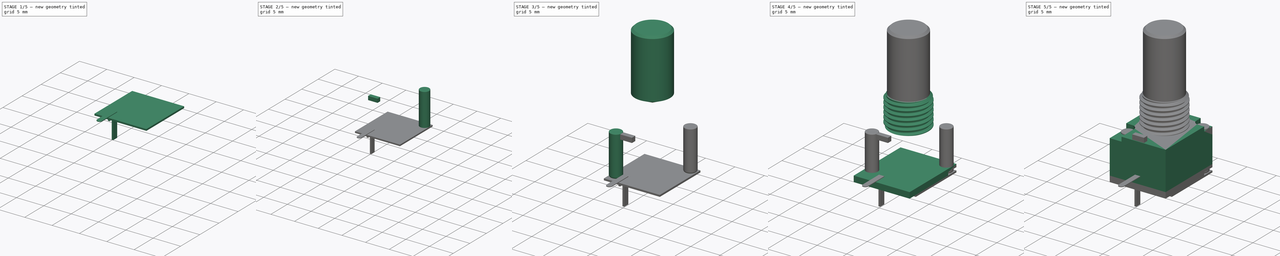
[diagram: build sequence overview — one tinted view per stage of 5, left to right]
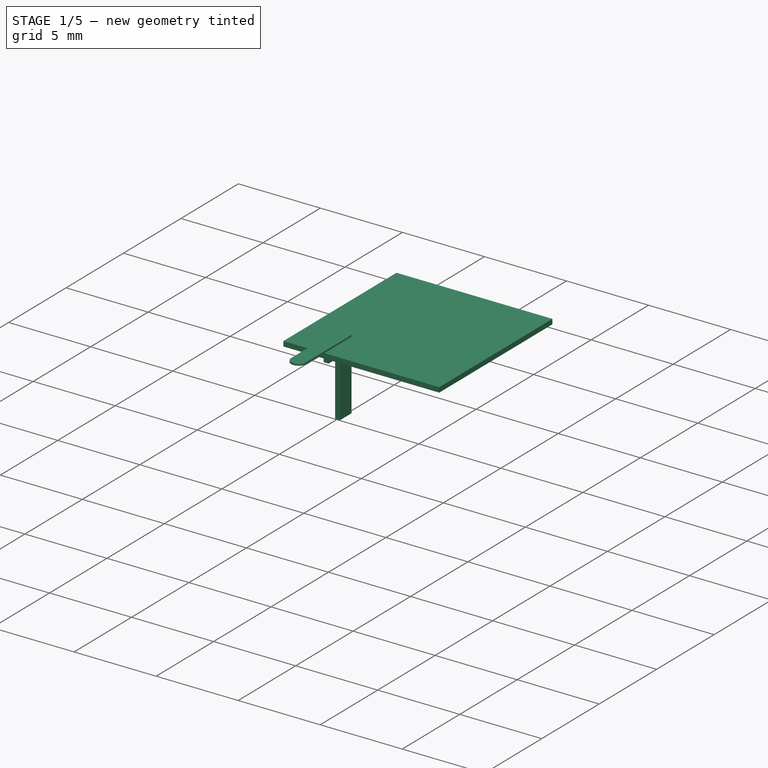
[diagram: stage 1 of 5 — iso view after this stage's code; geometry added in this stage tinted green]
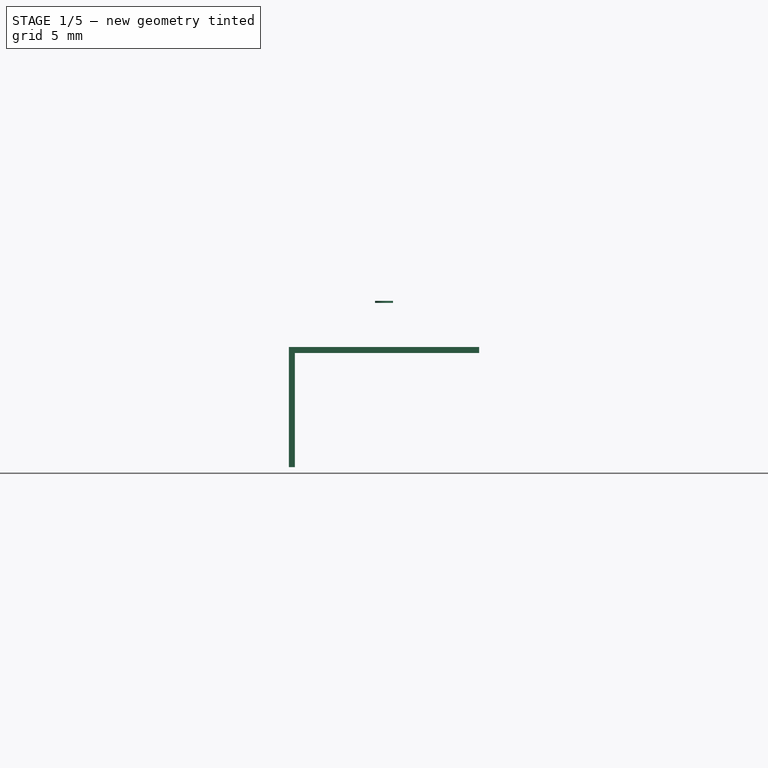
[diagram: stage 1 of 5 — front view after this stage's code; geometry added in this stage tinted green]
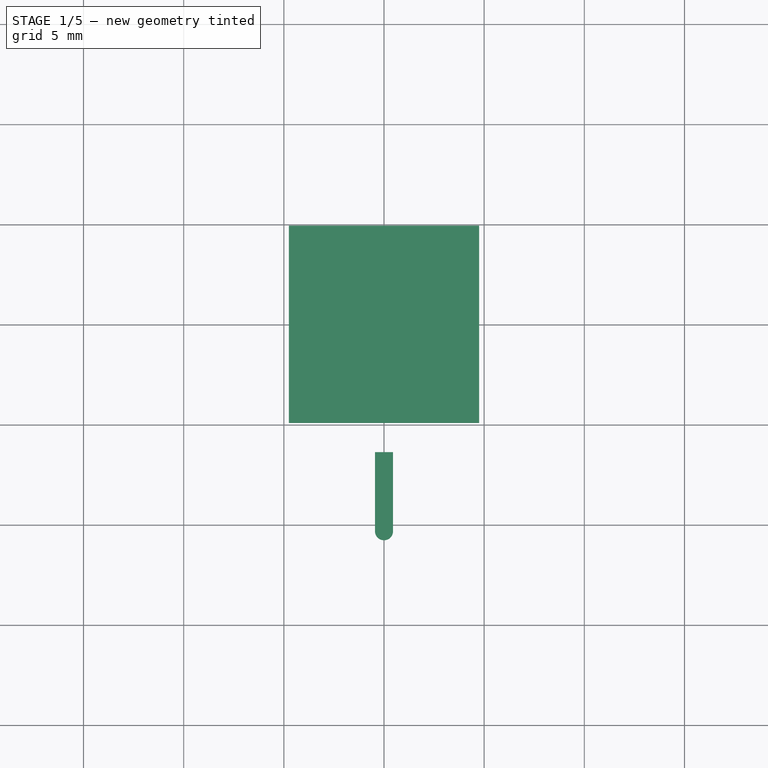
[diagram: stage 1 of 5 — top view after this stage's code; geometry added in this stage tinted green]
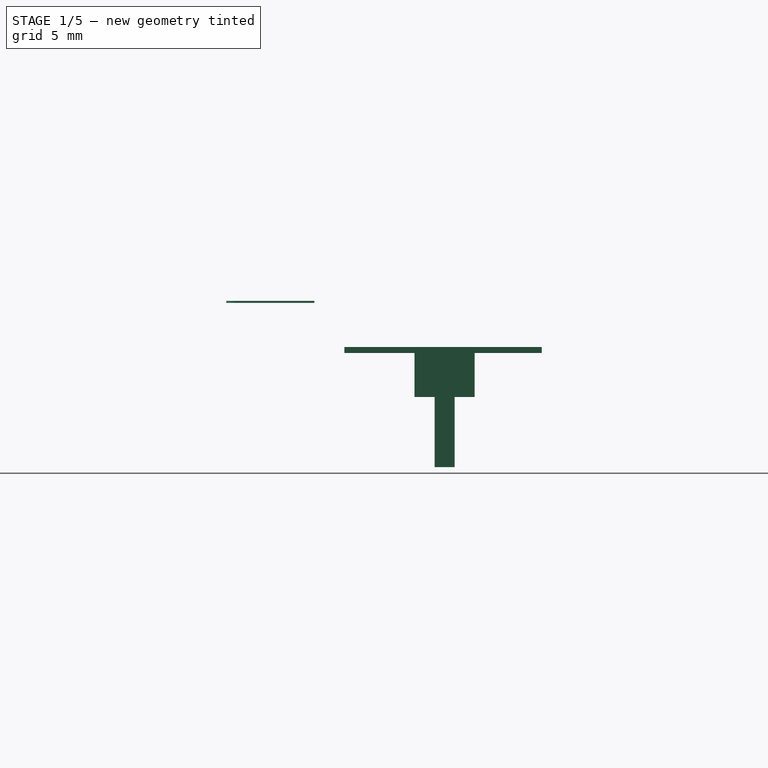
[diagram: stage 1 of 5 — right view after this stage's code; geometry added in this stage tinted green]
FCSTD DOCUMENT  (FreeCAD 0.18R16110 (Git))
Label: RD901F Datums Spreadsheet Labelfup
License: All rights reserved
LicenseURL: http://en.wikipedia.org/wiki/All_rights_reserved
objects: Sketcher::SketchObject×17, PartDesign::Body×12, PartDesign::Pad×10, PartDesign::Pocket×4, PartDesign::Fillet×4, PartDesign::Revolution×2, PartDesign::FeatureBase×2, Spreadsheet::Sheet×1, Part::Helix×1, PartDesign::ShapeBinder×1, PartDesign::SubtractivePipe×1, App::Part×1
note: 71 computed .brp shape members not serialized (recipe doc carries the construction recipe); baked Part::Feature solids carry a one-line shape summary decoded from their .brp

FEATURE [PartDesign::Body] Body008  label="Tab"
  Group = -> [Sketch012,Pad005]
  Origin = -> Origin009
  Tip = -> Pad005
FEATURE [Sketcher::SketchObject] Sketch013
  AttachmentOffset = pos=(0,0,2.25) rot=(0,0,1;0rad)
  MapMode = 5
  Placement = pos=(0,0,2.25) rot=(0,0,1;0rad)
  Support = -> [XY_Plane010]
  expr: AttachmentOffset.Base.z = Data.term_20_zpos
  expr: Constraints[16] = Data.body_y2
  expr: Constraints[15] = Data.term_20_x
  expr: Constraints[14] = Data.term_20_y
  sketch-geometry (7):
    g0: LineSegment StartX=-0.45 StartY=-6.5 StartZ=0 EndX=-0.45 EndY=-10.45 EndZ=0
    g1: LineSegment StartX=0.45 StartY=-6.5 StartZ=0 EndX=0.45 EndY=-10.45 EndZ=0
    g2: ArcOfCircle CenterX=0 CenterY=-10.45 CenterZ=0 NormalX=0 NormalY=0 NormalZ=1 AngleXU=0 Radius=0.45 StartAngle=3.14159 EndAngle=6.28319
    g3: LineSegment StartX=-0.45 StartY=-6.5 StartZ=0 EndX=0.45 EndY=-6.5 EndZ=0
    g4: GeomPoint X=0 Y=-10 Z=0
    g5: LineSegment [constr] StartX=0 StartY=-10 StartZ=0 EndX=0 EndY=-10.45 EndZ=0
    g6: LineSegment [constr] StartX=0 StartY=-10.45 StartZ=0 EndX=0 EndY=-6.5 EndZ=0
  constraints (18):
    c: Vertical(g0)
    c: Vertical(g1)
    c: Coincident(g3,g0)
    c: Coincident(g3,g1)
    c: Horizontal(g3)
    c: Tangent(g2,g1) = 1.5708
    c: Tangent(g2,g0) = -1.5708
    c: PointOnObject(g4,g2)
    c: Coincident(g5,g4)
    c: Coincident(g5,g2)
    c: Vertical(g5)
    c: Coincident(g6,g2)
    c: PointOnObject(g6,g3)
    c: Vertical(g6)
    c: DistanceY(g4,g6) = 3.5
    c: DistanceX(g0,g1) = 0.9
    c: DistanceY(g6,g-1) = 6.5
    c: PointOnObject(g6,g-2)
FEATURE [PartDesign::Pad] Pad006
  Length = 0.1
  Length2 = 100
  Midplane = true
  Profile = -> Sketch013
  Type = 0
  expr: Length = Data.term_20_z
FEATURE [PartDesign::Body] Body010  label="Terminals_Type_20_Clone"
  Group = -> [Clone]
  Origin = -> Origin011
  Placement = pos=(-2.5,0,0) rot=(0,0,1;0rad)
  Tip = -> Clone
FEATURE [PartDesign::FeatureBase] Clone001
  BaseFeature = -> Body009
FEATURE [PartDesign::Body] Body011  label="Terminals_Type_20_Clone2"
  Group = -> [Clone001]
  Origin = -> Origin012
  Placement = pos=(2.5,0,0) rot=(0,0,1;0rad)
  Tip = -> Clone001
FEATURE [Sketcher::SketchObject] Sketch014
  MapMode = 5
  Support = -> [XY_Plane013]
  expr: Constraints[10] = Data.body_y2 - Data.cutout_bl_y2
  expr: Constraints[9] = Data.body_x
  expr: Constraints[7] = Data.body_y1
  sketch-geometry (4):
    g0: LineSegment StartX=4.75 StartY=4.85 StartZ=0 EndX=-4.75 EndY=4.85 EndZ=0
    g1: LineSegment StartX=-4.75 StartY=4.85 StartZ=0 EndX=-4.75 EndY=-5 EndZ=0
    g2: LineSegment StartX=-4.75 StartY=-5 StartZ=0 EndX=4.75 EndY=-5 EndZ=0
    g3: LineSegment StartX=4.75 StartY=-5 StartZ=0 EndX=4.75 EndY=4.85 EndZ=0
  constraints (11):
    c: Coincident(g0,g1)
    c: Coincident(g1,g2)
    c: Coincident(g2,g3)
    c: Coincident(g3,g0)
    c: Horizontal(g2)
    c: Vertical(g1)
    c: Vertical(g3)
    c: DistanceY(g-1,g0) = 4.85
    c: Symmetric(g0,g0,g-2)
    c: DistanceX(g0,g0) = 9.5
    c: DistanceY(g1,g-1) = 5
FEATURE [PartDesign::Pad] Pad007
  Length = 0.3
  Length2 = 100
  Profile = -> Sketch014
  Reversed = true
  Type = 0
  expr: Length = Data.bracket_t
FEATURE [Sketcher::SketchObject] Sketch015
  AttachmentOffset = pos=(0,0,-0.3) rot=(0,0,1;0rad)
  MapMode = 5
  Placement = pos=(0,0,-0.3) rot=(0,0,1;0rad)
  Support = -> [XY_Plane013]
  expr: Constraints[10] = Data.body_x / 2
  expr: Constraints[9] = Data.bracket_t
  expr: AttachmentOffset.Base.z = -Data.bracket_t
  expr: Constraints[8] = Data.mountingpin_top_width
  sketch-geometry (4):
    g0: LineSegment StartX=-4.75 StartY=1.5 StartZ=0 EndX=-4.45 EndY=1.5 EndZ=0
    g1: LineSegment StartX=-4.45 StartY=1.5 StartZ=0 EndX=-4.45 EndY=-1.5 EndZ=0
    g2: LineSegment StartX=-4.45 StartY=-1.5 StartZ=0 EndX=-4.75 EndY=-1.5 EndZ=0
    g3: LineSegment StartX=-4.75 StartY=-1.5 StartZ=0 EndX=-4.75 EndY=1.5 EndZ=0
  constraints (11):
    c: Coincident(g0,g1)
    c: Coincident(g1,g2)
    c: Coincident(g2,g3)
    c: Coincident(g3,g0)
    c: Horizontal(g0)
    c: Horizontal(g2)
    c: Vertical(g1)
    c: Symmetric(g0,g2,g-1)
    c: DistanceY(g3,g3) = 3
    c: DistanceX(g0,g0) = 0.3
    c: DistanceX(g0,g-1) = 4.75
FEATURE [PartDesign::Pad] Pad008
  BaseFeature = -> Pad007
  Length = 2.2
  Length2 = 100
  Profile = -> Sketch015
  Reversed = true
  Type = 0
  expr: Length = Data.standoff_t
FEATURE [Sketcher::SketchObject] Sketch016
  AttachmentOffset = pos=(0,0,-2.5) rot=(0,0,1;0rad)
  MapMode = 5
  Placement = pos=(0,0,-2.5) rot=(0,0,1;0rad)
  Support = -> [XY_Plane013]
  expr: Constraints[10] = Data.body_x / 2
  expr: Constraints[9] = Data.bracket_t
  expr: AttachmentOffset.Base.z = -Data.bracket_t - Data.standoff_t
  expr: Constraints[8] = Data.mountingpin_bottom_width
  sketch-geometry (4):
    g0: LineSegment StartX=-4.75 StartY=0.5 StartZ=0 EndX=-4.45 EndY=0.5 EndZ=0
    g1: LineSegment StartX=-4.45 StartY=0.5 StartZ=0 EndX=-4.45 EndY=-0.5 EndZ=0
    g2: LineSegment StartX=-4.45 StartY=-0.5 StartZ=0 EndX=-4.75 EndY=-0.5 EndZ=0
    g3: LineSegment StartX=-4.75 StartY=-0.5 StartZ=0 EndX=-4.75 EndY=0.5 EndZ=0
  constraints (11):
    c: Coincident(g0,g1)
    c: Coincident(g1,g2)
    c: Coincident(g2,g3)
    c: Coincident(g3,g0)
    c: Horizontal(g0)
    c: Horizontal(g2)
    c: Vertical(g1)
    c: Symmetric(g0,g2,g-1)
    c: DistanceY(g3,g3) = 1
    c: DistanceX(g0,g0) = 0.3
    c: DistanceX(g0,g-1) = 4.75
FEATURE [PartDesign::Pad] Pad009
  BaseFeature = -> Pad008
  Length = 3.5
  Length2 = 100
  Profile = -> Sketch016
  Reversed = true
  Type = 0
  expr: Length = Data.mountingpin_bottom_length
FEATURE [PartDesign::Body] Body012  label="Bracket"
  Group = -> [Sketch014,Pad007,Sketch015,Pad008,Sketch016,Pad009]
  Origin = -> Origin013
  Tip = -> Pad009
FEATURE [App::Part] Part  label="RD901F-XX-XXX"
  Group = -> [Body,Body001,Body002,Body003,Body004,Body006,Body007,Body008,Body009,Body010,Body011,Body012]
  Origin = -> Origin
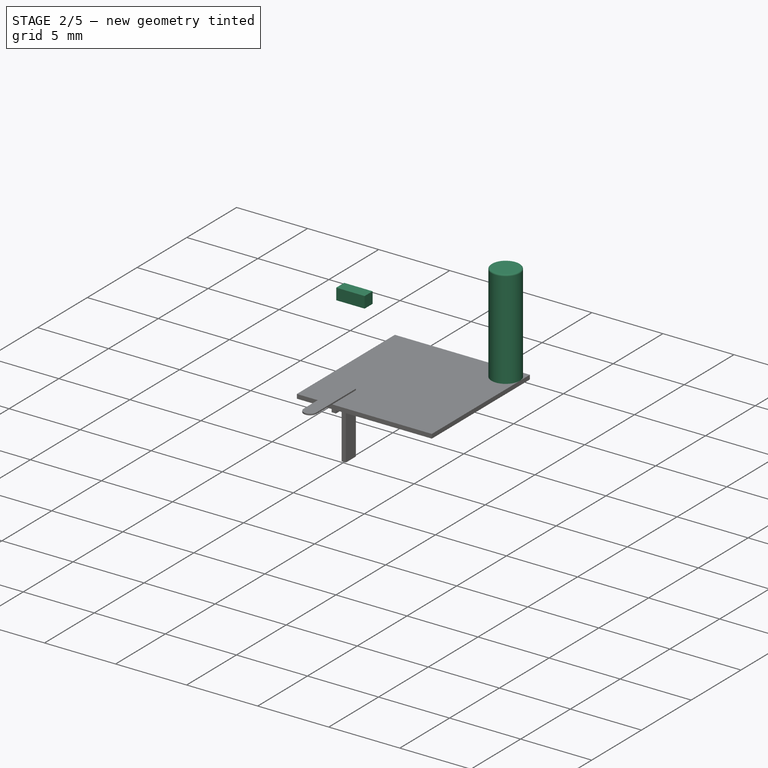
[diagram: stage 2 of 5 — iso view after this stage's code; geometry added in this stage tinted green]
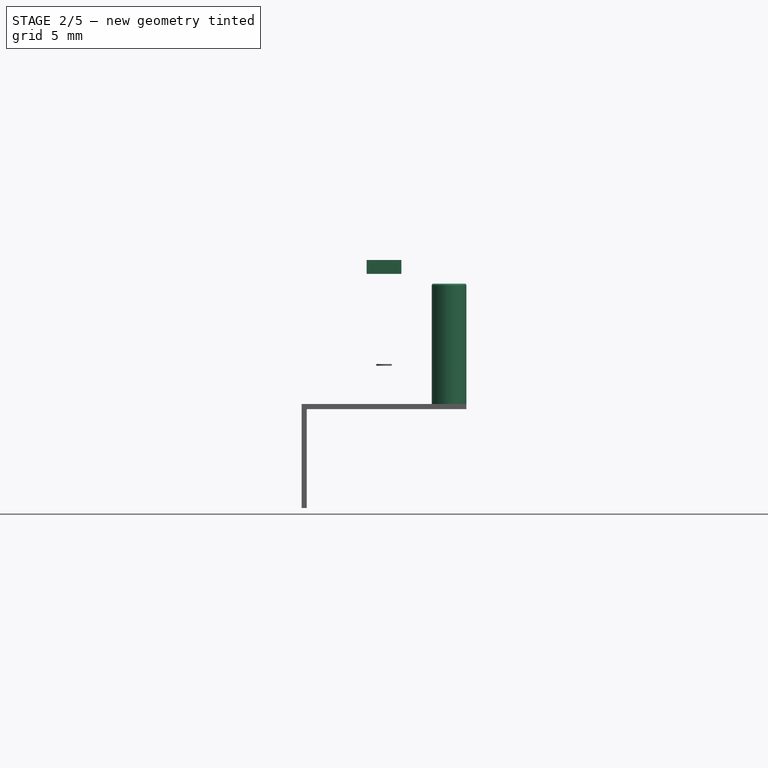
[diagram: stage 2 of 5 — front view after this stage's code; geometry added in this stage tinted green]
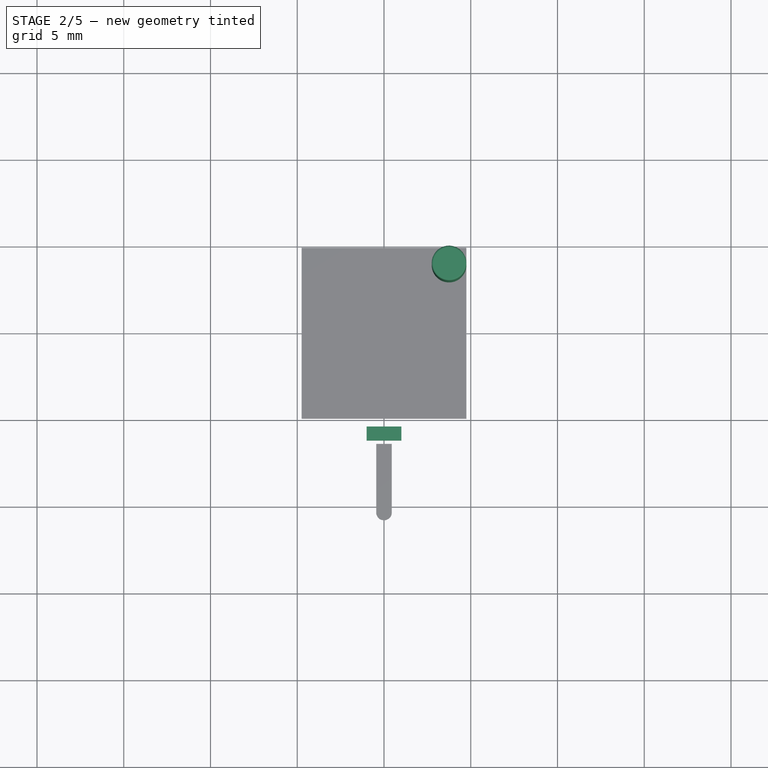
[diagram: stage 2 of 5 — top view after this stage's code; geometry added in this stage tinted green]
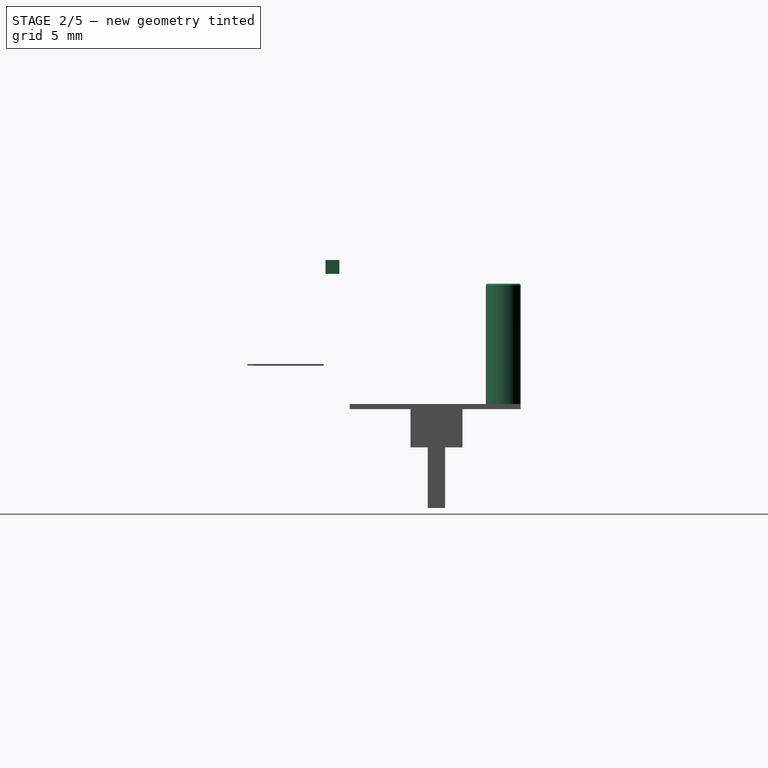
[diagram: stage 2 of 5 — right view after this stage's code; geometry added in this stage tinted green]
FEATURE [PartDesign::Body] Body  label="Housing_Bottom"
  Group = -> [Sketch,Pad,Sketch005,Pocket002,Sketch006,Pocket003]
  Origin = -> Origin001
  Tip = -> Pocket003
FEATURE [Sketcher::SketchObject] Sketch007
  MapMode = 5
  Support = -> [XY_Plane004]
  expr: Constraints[2] = -Data.body_x / 2 + Data.cutout_r
  expr: Constraints[1] = Data.body_y1 - Data.cutout_r
  expr: Constraints[0] = Data.cutout_r
  sketch-geometry (1):
    g0: Circle CenterX=3.75 CenterY=3.85 CenterZ=0 NormalX=0 NormalY=0 NormalZ=1 AngleXU=0 Radius=1
  constraints (3):
    c: Radius(g0) = 1
    c: DistanceY(g-1,g0) = 3.85
    c: DistanceX(g0,g-1) = -3.75
FEATURE [PartDesign::Pad] Pad003
  Length = 6.9375
  Length2 = 100
  Profile = -> Sketch007
  Type = 0
  expr: Length = Data.body_z1 + Data.body_z2 + Data.body_z3 - 0.75 * Data.cutout_t_z
FEATURE [PartDesign::Body] Body004  label="Rivet_Left"
  Group = -> [Sketch008,Pad004,Fillet,Fillet001]
  Origin = -> Origin005
  Tip = -> Fillet001
FEATURE [PartDesign::Fillet] Fillet002
  Base = -> Pad003 [Edge3]
  BaseFeature = -> Pad003
  Radius = 0.1
FEATURE [PartDesign::Body] Body003  label="Rivet_Right"
  Group = -> [Sketch007,Pad003,Fillet002,Fillet003]
  Origin = -> Origin004
  Tip = -> Fillet003
FEATURE [Sketcher::SketchObject] Sketch012
  AttachmentOffset = pos=(0,0,7.5) rot=(0,0,1;0rad)
  MapMode = 5
  Placement = pos=(0,0,7.5) rot=(0,0,1;0rad)
  Support = -> [XY_Plane009]
  expr: Constraints[9] = Data.tab_y
  expr: Constraints[8] = Data.tab_x
  expr: AttachmentOffset.Base.z = Data.body_z1 + Data.body_z2 + Data.body_z3
  sketch-geometry (8):
    g0: LineSegment StartX=-1 StartY=-5.6 StartZ=0 EndX=1 EndY=-5.6 EndZ=0
    g1: LineSegment StartX=1 StartY=-5.6 StartZ=0 EndX=1 EndY=-6.4 EndZ=0
    g2: LineSegment StartX=1 StartY=-6.4 StartZ=0 EndX=-1 EndY=-6.4 EndZ=0
    g3: LineSegment StartX=-1 StartY=-6.4 StartZ=0 EndX=-1 EndY=-5.6 EndZ=0
    g4: LineSegment [constr] StartX=-1 StartY=-5.6 StartZ=0 EndX=1 EndY=-6.4 EndZ=0
    g5: LineSegment [constr] StartX=1 StartY=-5.6 StartZ=0 EndX=-1 EndY=-6.4 EndZ=0
    g6: GeomPoint X=-9e-16 Y=-6 Z=0
    g7: GeomPoint X=-9e-16 Y=-6 Z=0
  constraints (18):
    c: Coincident(g0,g1)
    c: Coincident(g1,g2)
    c: Coincident(g2,g3)
    c: Coincident(g3,g0)
    c: Horizontal(g2)
    c: Vertical(g1)
    c: Vertical(g3)
    c: Symmetric(g0,g0,g-2)
    c: DistanceX(g2,g2) = 2
    c: DistanceY(g1,g1) = 0.8
    c: Coincident(g4,g0)
    c: Coincident(g4,g1)
    c: Coincident(g5,g0)
    c: Coincident(g5,g2)
    c: PointOnObject(g6,g5)
    c: PointOnObject(g7,g4)
    c: Coincident(g7,g6)
    c: DistanceY(g6,g-1) = 6
FEATURE [PartDesign::Pad] Pad005
  Length = 0.8
  Length2 = 100
  Profile = -> Sketch012
  Type = 0
  expr: Length = Data.tab_z
FEATURE [PartDesign::Body] Body009  label="Terminals_Type_20"
  Group = -> [Sketch013,Pad006]
  Origin = -> Origin010
  Tip = -> Pad006
FEATURE [PartDesign::FeatureBase] Clone
  BaseFeature = -> Body009
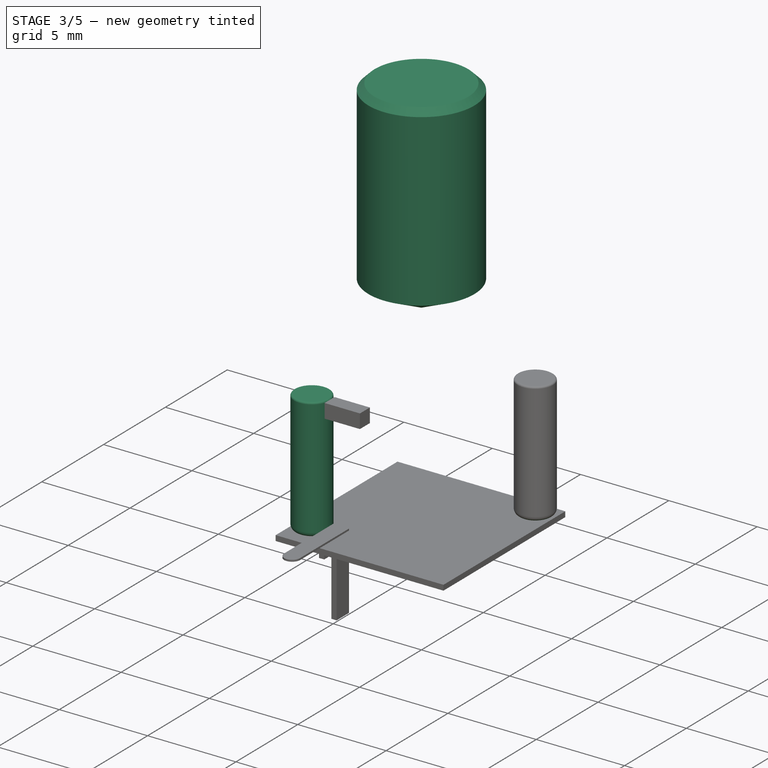
[diagram: stage 3 of 5 — iso view after this stage's code; geometry added in this stage tinted green]
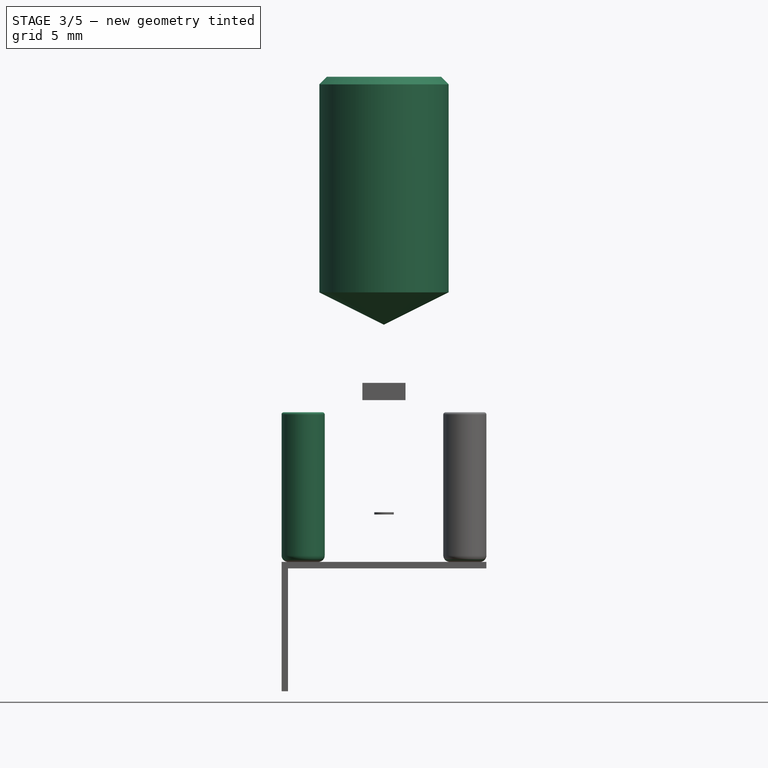
[diagram: stage 3 of 5 — front view after this stage's code; geometry added in this stage tinted green]
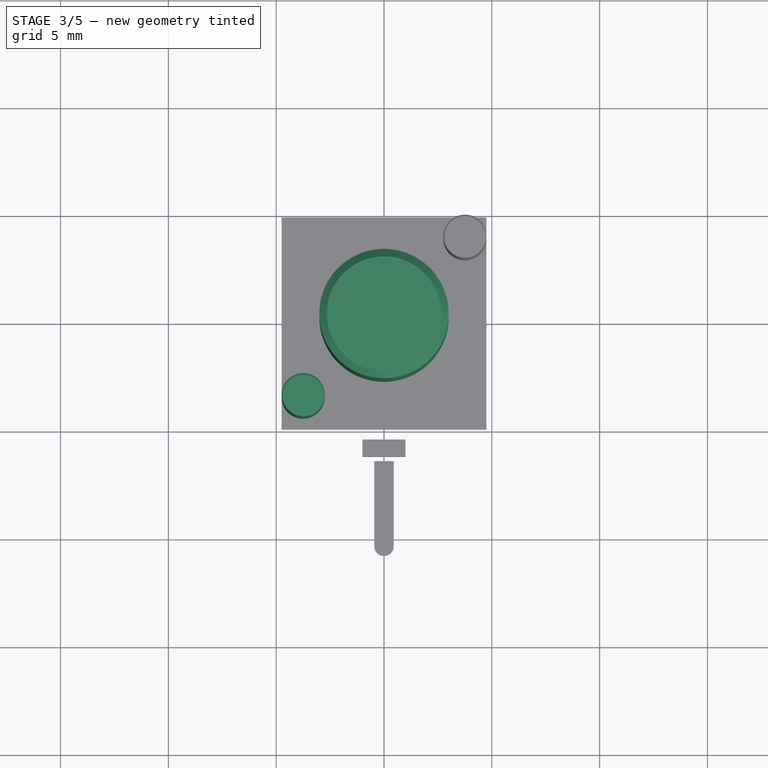
[diagram: stage 3 of 5 — top view after this stage's code; geometry added in this stage tinted green]
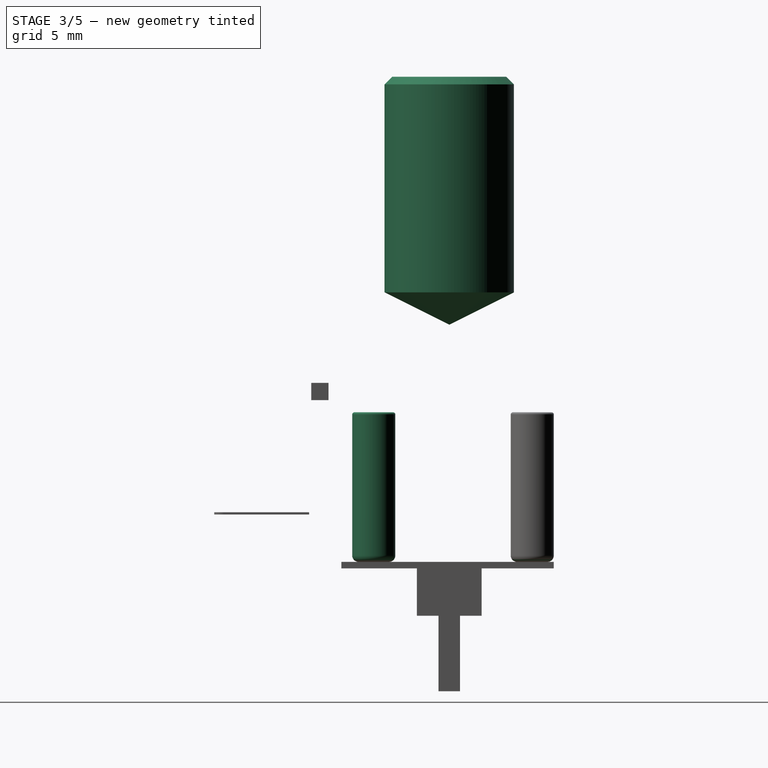
[diagram: stage 3 of 5 — right view after this stage's code; geometry added in this stage tinted green]
FEATURE [Sketcher::SketchObject] Sketch008
  MapMode = 5
  Support = -> [XY_Plane005]
  expr: Constraints[2] = Data.body_x / 2 - Data.cutout_r
  expr: Constraints[1] = Data.body_y2 - Data.cutout_tl_y + Data.cutout_r
  expr: Constraints[0] = Data.cutout_r
  sketch-geometry (1):
    g0: Circle CenterX=-3.75 CenterY=-3.5 CenterZ=0 NormalX=0 NormalY=0 NormalZ=1 AngleXU=0 Radius=1
  constraints (3):
    c: Radius(g0) = 1
    c: DistanceY(g0,g-1) = 3.5
    c: DistanceX(g0,g-1) = 3.75
FEATURE [PartDesign::Pad] Pad004
  Length = 6.9375
  Length2 = 100
  Profile = -> Sketch008
  Type = 0
  expr: Length = Data.body_z1 + Data.body_z2 + Data.body_z3 - 0.75 * Data.cutout_t_z
FEATURE [PartDesign::Body] Body006  label="Thread"
  Group = -> [ShapeBinder,Sketch009,Revolution,Sketch010,SubtractivePipe]
  Origin = -> Origin007
  Placement = pos=(0,0,0) rot=(0,0,1;1.5708rad)
  Tip = -> SubtractivePipe
FEATURE [Sketcher::SketchObject] Sketch011
  MapMode = 5
  Placement = pos=(0,0,0) rot=(0.57735,0.57735,0.57735;2.0944rad)
  Support = -> [YZ_Plane008]
  expr: Constraints[9] = Data.body_z1 + Data.body_z2 + Data.body_z3 + Data.thread_z + Data.shaft_z
  expr: Constraints[5] = Data.shaft_r
  expr: Constraints[6] = Data.body_z1 + Data.body_z2 + Data.body_z3 + Data.thread_z
  sketch-geometry (6):
    g0: LineSegment StartX=0 StartY=11 StartZ=0 EndX=3 EndY=12.5 EndZ=0
    g1: LineSegment StartX=3 StartY=12.5 StartZ=0 EndX=3 EndY=22.1464 EndZ=0
    g2: LineSegment StartX=3 StartY=22.1464 StartZ=0 EndX=2.64645 EndY=22.5 EndZ=0
    g3: LineSegment StartX=0 StartY=22.5 StartZ=0 EndX=0 EndY=11 EndZ=0
    g4: LineSegment [constr] StartX=0 StartY=22.1464 StartZ=0 EndX=3 EndY=22.1464 EndZ=0
    g5: LineSegment StartX=0 StartY=22.5 StartZ=0 EndX=2.64645 EndY=22.5 EndZ=0
  constraints (17):
    c: Coincident(g0,g1)
    c: Vertical(g1)
    c: Coincident(g1,g2)
    c: Coincident(g3,g0)
    c: Vertical(g3)
    c: DistanceX(g0,g0) = 3
    c: DistanceY(g-1,g0) = 12.5
    c: Coincident(g4,g1)
    c: Horizontal(g4)
    c: DistanceY(g-1,g2) = 22.5
    c: Angle(g2,g4) = 0.785398
    c: Distance(g2) = 0.5
    c: PointOnObject(g3,g-2)
    c: Coincident(g5,g3)
    c: Coincident(g5,g2)
    c: Horizontal(g5)
    c: PointOnObject(g4,g-2)
FEATURE [PartDesign::Revolution] Revolution001
  Angle = 360
  Axis = (-2e-16,3e-16,1)
  Base = (0,0,0)
  Placement = pos=(0,0,0) rot=(0.57735,0.57735,0.57735;2.0944rad)
  Profile = -> Sketch011
  ReferenceAxis = -> Sketch011 [V_Axis]
  Reversed = true
FEATURE [PartDesign::Body] Body007  label="Shaft"
  Group = -> [Sketch011,Revolution001]
  Origin = -> Origin008
  Tip = -> Revolution001
FEATURE [PartDesign::Fillet] Fillet
  Base = -> Pad004 [Edge3]
  BaseFeature = -> Pad004
  Radius = 0.1
FEATURE [PartDesign::Fillet] Fillet001
  Base = -> Fillet [Edge3]
  BaseFeature = -> Fillet
  Radius = 0.3
FEATURE [PartDesign::Fillet] Fillet003
  Base = -> Fillet002 [Edge3]
  BaseFeature = -> Fillet002
  Radius = 0.3
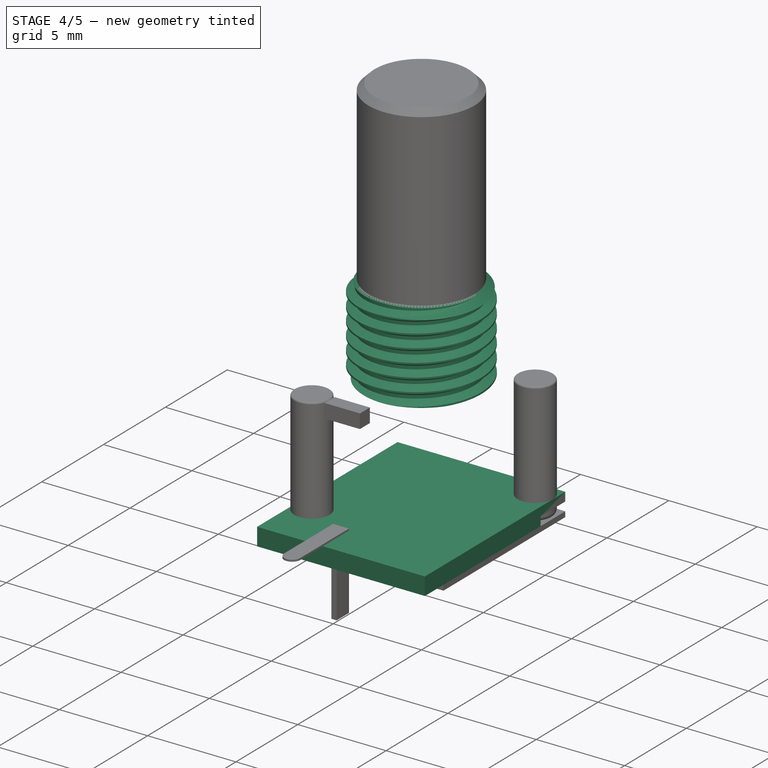
[diagram: stage 4 of 5 — iso view after this stage's code; geometry added in this stage tinted green]
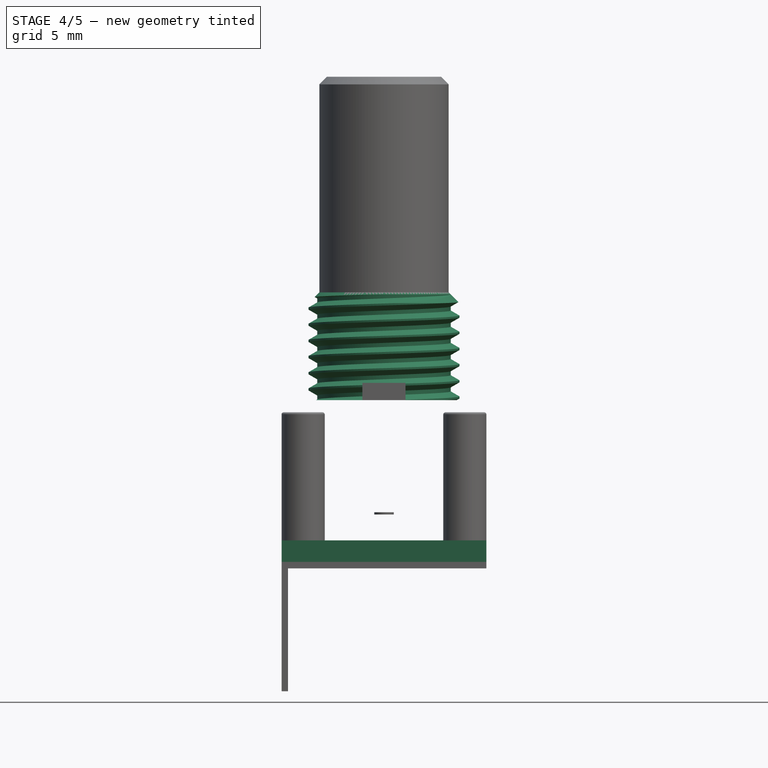
[diagram: stage 4 of 5 — front view after this stage's code; geometry added in this stage tinted green]
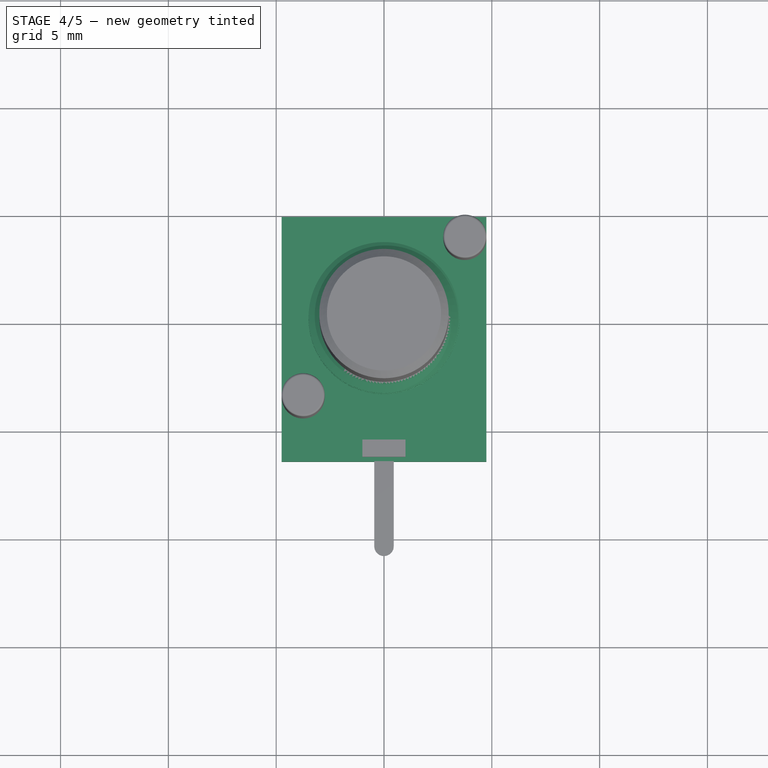
[diagram: stage 4 of 5 — top view after this stage's code; geometry added in this stage tinted green]
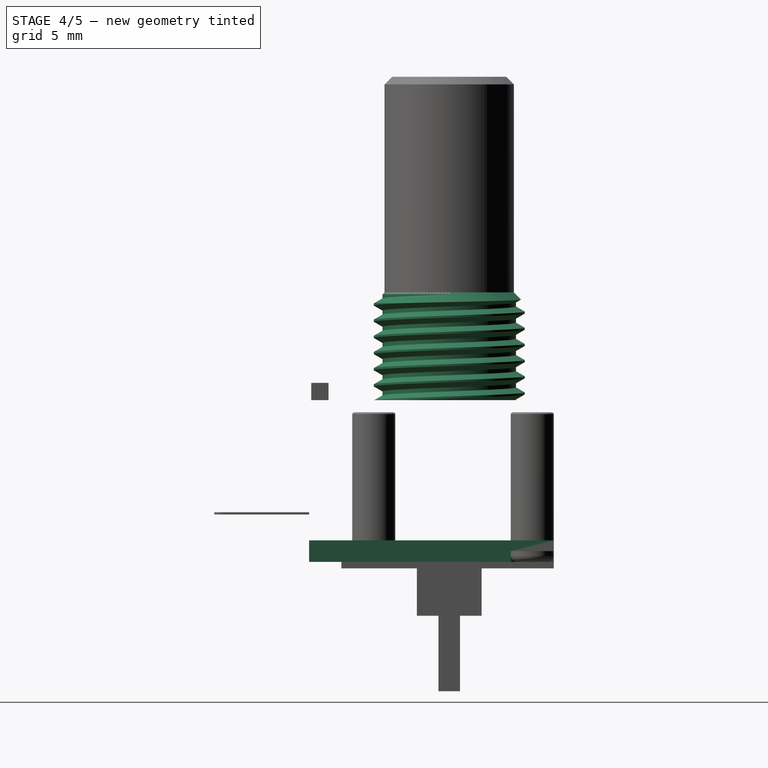
[diagram: stage 4 of 5 — right view after this stage's code; geometry added in this stage tinted green]
FEATURE [Spreadsheet::Sheet] Spreadsheet  label="Data"
  cells = A1=Type; B1=RD901F; A3=body_x; B3(body_x)==9.5mm; A4=body_y1; B4(body_y1)==4.85mm; A5=body_y2; B5(body_y2)==6.5mm; A6=body_z1; B6(body_z1)==1mm; C6==sum(B6:B8); A7=body_z2; B7(body_z2)==4.5mm; D7=sum 7.5 mm; A8=body_z3; B8(body_z3)==2mm; A10=cutout_r; B10(cutout_r)==1mm; A11=cutout_t_z; B11(cutout_t_z)==0.75mm; D11=less than body_z1 / z3; A12=cutout_b_z; B12(cutout_b_z)==0.5mm; A13=cutout_tr_x; B13(cutout_tr_x)==2mm; A14=cutout_tr_y; B14(cutout_tr_y)==2mm; A15=cutout_tl_x; B15(cutout_tl_x)==2mm; A16=cutout_tl_y; B16(cutout_tl_y)==4mm; A18=cutout_br_x; B18(cutout_br_x)==2mm; A19=cutout_br_y; B19(cutout_br_y)==2mm; A20=cutout_bl_x; B20(cutout_bl_x)==2mm; A21=cutout_bl_y1; B21(cutout_bl_y1)==1.5mm; A22=cutout_bl_y2; B22(cutout_bl_y2)==1.5mm; C22=offset from body; A24=thread_r; B24(thread_r)==3.5mm; C24=M7; A25=thread_z; B25(thread_z)==5mm; A27=shaft_r; B27(shaft_r)==3mm; A28=shaft_z; B28(shaft_z)==10mm; A30=tab_x; B30(tab_x)==2mm; A31=tab_y; B31(tab_y)==0.8mm; A32=tab_z; B32(tab_z)==0.8mm; A34=term_20_x; B34(term_20_x)==0.9mm; A35=term_20_y; B35(term_20_y)==3.5mm; A36=term_20_z; B36(term_20_z)==0.1mm; A37=term_20_zpos; B37(term_20_zpos)==2.25mm; A39=bracket_t; B39(bracket_t)==0.3mm; A40=standoff_t; B40(standoff_t)==2.5mm - bracket_t; A41=mountingpin_top_width; B41(mountingpin_top_width)==3mm; A42=mountingpin_bottom_width; B42(mountingpin_bottom_width)==1mm; A43=mountingpin_bottom_length; B43(mountingpin_bottom_length)==3.5mm; D45=mounting pin pitch; D46=11.4 - 1.8 = 9.6 mm; D47=mounting pin hole width; D48=12.0 - 9.5 = 2.5 / 2 = 1.25
FEATURE [Sketcher::SketchObject] Sketch
  MapMode = 5
  Support = -> [XY_Plane001]
  expr: Constraints[14] = Data.body_x
  expr: Constraints[13] = Data.body_y2
  expr: Constraints[12] = Data.body_y1
  sketch-geometry (5):
    g0: LineSegment StartX=-4.75 StartY=4.85 StartZ=0 EndX=4.75 EndY=4.85 EndZ=0
    g1: LineSegment StartX=4.75 StartY=4.85 StartZ=0 EndX=4.75 EndY=-6.5 EndZ=0
    g2: LineSegment StartX=4.75 StartY=-6.5 StartZ=0 EndX=-4.75 EndY=-6.5 EndZ=0
    g3: LineSegment StartX=-4.75 StartY=-6.5 StartZ=0 EndX=-4.75 EndY=4.85 EndZ=0
    g4: LineSegment [constr] StartX=-4.75 StartY=0 StartZ=0 EndX=4.75 EndY=0 EndZ=0
  constraints (15):
    c: Coincident(g0,g1)
    c: Coincident(g1,g2)
    c: Coincident(g2,g3)
    c: Coincident(g3,g0)
    c: Horizontal(g2)
    c: Vertical(g1)
    c: Vertical(g3)
    c: PointOnObject(g4,g3)
    c: PointOnObject(g4,g1)
    c: Horizontal(g4)
    c: PointOnObject(g4,g-1)
    c: Symmetric(g0,g0,g-2)
    c: DistanceY(g4,g0) = 4.85
    c: DistanceY(g1,g4) = 6.5
    c: DistanceX(g0,g0) = 9.5
FEATURE [PartDesign::Pad] Pad
  Length = 1
  Length2 = 100
  Profile = -> Sketch
  Type = 0
  expr: Length = Data.body_z1
FEATURE [PartDesign::Body] Body002  label="Housing_Top"
  Group = -> [Sketch001,Pad002,Sketch003,Pocket,Sketch004,Pocket001]
  Origin = -> Origin003
  Tip = -> Pocket001
FEATURE [Sketcher::SketchObject] Sketch005
  MapMode = 5
  Support = -> [XY_Plane001]
  expr: Constraints[13] = Data.body_y1
  expr: Constraints[12] = Data.body_x / 2
  expr: Constraints[11] = Data.cutout_br_y
  expr: Constraints[10] = Data.cutout_br_x
  expr: Constraints[9] = Data.cutout_r
  sketch-geometry (5):
    g0: LineSegment StartX=2.75 StartY=4.85 StartZ=0 EndX=4.75 EndY=4.85 EndZ=0
    g1: LineSegment StartX=4.75 StartY=4.85 StartZ=0 EndX=4.75 EndY=2.85 EndZ=0
    g2: LineSegment StartX=4.75 StartY=2.85 StartZ=0 EndX=3.75 EndY=2.85 EndZ=0
    g3: LineSegment StartX=2.75 StartY=3.85 StartZ=0 EndX=2.75 EndY=4.85 EndZ=0
    g4: ArcOfCircle CenterX=3.75 CenterY=3.85 CenterZ=0 NormalX=0 NormalY=0 NormalZ=1 AngleXU=0 Radius=1 StartAngle=3.14159 EndAngle=4.71239
  constraints (14):
    c: Coincident(g0,g1)
    c: Coincident(g1,g2)
    c: Coincident(g3,g0)
    c: Horizontal(g0)
    c: Horizontal(g2)
    c: Vertical(g1)
    c: Vertical(g3)
    c: Tangent(g2,g4) = 1.5708
    c: Tangent(g3,g4) = 1.5708
    c: DistanceX(g3,g4) = 1
    c: DistanceX(g3,g1) = 2
    c: DistanceY(g1,g0) = 2
    c: DistanceX(g-1,g0) = 4.75
    c: DistanceY(g-1,g0) = 4.85
FEATURE [PartDesign::Pocket] Pocket002
  BaseFeature = -> Pad
  Length = 0.5
  Length2 = 100
  Profile = -> Sketch005
  Reversed = true
  Type = 0
  expr: Length = Data.cutout_b_z
FEATURE [Part::Helix] Helix
  Angle = 0
  AttacherType = Attacher::AttachEngine3D
  Height = 6
  LocalCoord = 0
  Pitch = 0.75
  Placement = pos=(0,0,6.5) rot=(0,0,1;0rad)
  Radius = 3.5
  Style = 1
  expr: Height = Data.thread_z + 1mm
  expr: Placement.Base.z = Data.body_z1 + Data.body_z2 + Data.body_z3 - 1mm
FEATURE [PartDesign::ShapeBinder] ShapeBinder
  Placement = pos=(0,0,6.5) rot=(0,0,1;0rad)
  Support = -> [Helix]
  TraceSupport = false
FEATURE [Sketcher::SketchObject] Sketch009
  MapMode = 5
  Placement = pos=(0,0,0) rot=(0.57735,0.57735,0.57735;2.0944rad)
  Support = -> [YZ_Plane007]
  expr: Constraints[14] = Data.body_z1 + Data.body_z2 + Data.body_z3
  sketch-geometry (5):
    g0: LineSegment StartX=0 StartY=12.5 StartZ=0 EndX=0 EndY=7.5 EndZ=0
    g1: LineSegment StartX=0 StartY=7.5 StartZ=0 EndX=3.5 EndY=7.5 EndZ=0
    g2: LineSegment StartX=3.5 StartY=7.5 StartZ=0 EndX=3.5 EndY=12 EndZ=0
    g3: LineSegment StartX=3.5 StartY=12 StartZ=0 EndX=3 EndY=12.5 EndZ=0
    g4: LineSegment StartX=3 StartY=12.5 StartZ=0 EndX=0 EndY=12.5 EndZ=0
  constraints (15):
    c: Vertical(g0)
    c: Coincident(g0,g1)
    c: Horizontal(g1)
    c: Coincident(g1,g2)
    c: Vertical(g2)
    c: Coincident(g2,g3)
    c: Coincident(g3,g4)
    c: Coincident(g4,g0)
    c: Horizontal(g4)
    c: DistanceX(g4,g4) = 3
    c: DistanceX(g1,g1) = 3.5
    c: DistanceY(g0,g0) = 5
    c: Angle(g3,g2) = 2.35619
    c: PointOnObject(g0,g-2)
    c: DistanceY(g-1,g1) = 7.5
FEATURE [PartDesign::Revolution] Revolution
  Angle = 360
  Axis = (-2e-16,3e-16,1)
  Base = (0,0,0)
  Placement = pos=(0,0,0) rot=(0.57735,0.57735,0.57735;2.0944rad)
  Profile = -> Sketch009
  ReferenceAxis = -> Sketch009 [V_Axis]
  Reversed = true
FEATURE [Sketcher::SketchObject] Sketch010
  AttachmentOffset = pos=(0,0,0) rot=(0,1,0;1.5708rad)
  MapMode = 5
  Placement = pos=(0,0,0) rot=(0,0.707107,0.707107;3.14159rad)
  Support = -> [YZ_Plane007]
  expr: Constraints[8] = 0.75mm / 4
  expr: Constraints[1] = Data.body_z1 + Data.body_z2 + Data.body_z3 + Data.thread_z
  sketch-geometry (5):
    g0: LineSegment [constr] StartX=-6.91819 StartY=12.5 StartZ=0 EndX=7.60941 EndY=12.5 EndZ=0
    g1: LineSegment StartX=-4.0975 StartY=13.1731 StartZ=0 EndX=-3.094 EndY=12.5938 EndZ=0
    g2: LineSegment StartX=-3.094 StartY=12.5938 StartZ=0 EndX=-3.094 EndY=12.4062 EndZ=0
    g3: LineSegment StartX=-3.094 StartY=12.4062 StartZ=0 EndX=-4.0975 EndY=11.8269 EndZ=0
    g4: LineSegment StartX=-4.0975 StartY=11.8269 StartZ=0 EndX=-4.0975 EndY=13.1731 EndZ=0
  constraints (11):
    c: Horizontal(g0)
    c: DistanceY(g-1,g0) = 12.5
    c: Coincident(g1,g2)
    c: Coincident(g2,g3)
    c: Coincident(g3,g4)
    c: Symmetric(g1,g2,g0)
    c: Coincident(g4,g1)
    c: Angle(g1,g3) = 1.0472
    c: DistanceY(g2,g2) = 0.1875
    c: Symmetric(g1,g3,g0)
    c: DistanceX(g1,g-1) = 3.094
FEATURE [PartDesign::SubtractivePipe] SubtractivePipe
  AuxilleryCurvelinear = true
  AuxillerySpineTangent = false
  BaseFeature = -> Revolution
  Binormal = (0,0,0)
  Mode = 2
  Placement = pos=(0,0,0) rot=(0.57735,0.57735,0.57735;2.0944rad)
  Profile = -> Sketch010
  Spine = -> ShapeBinder
  SpineTangent = false
  Transformation = 0
  Transition = 0
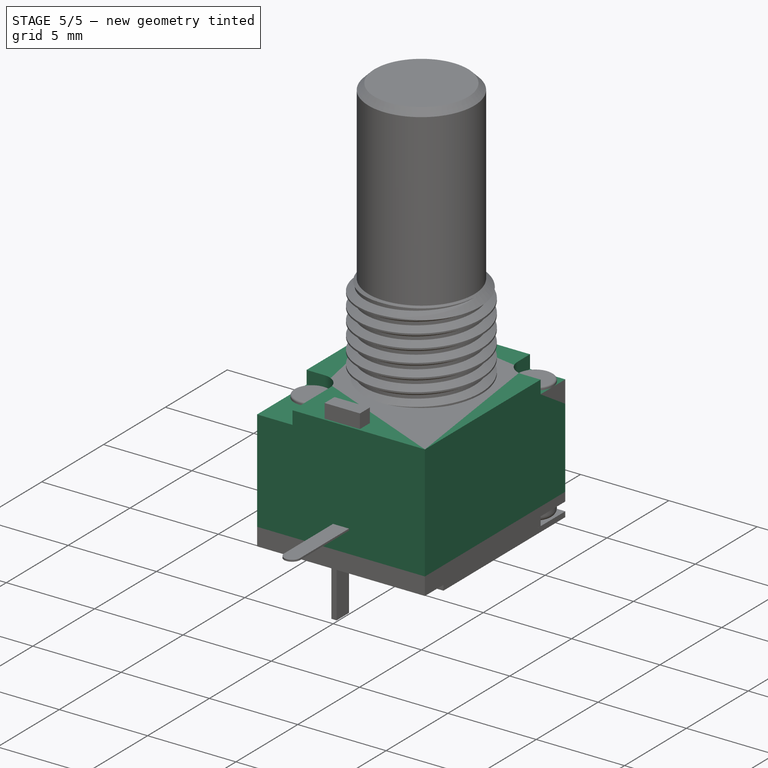
[diagram: stage 5 of 5 — iso view after this stage's code; geometry added in this stage tinted green]
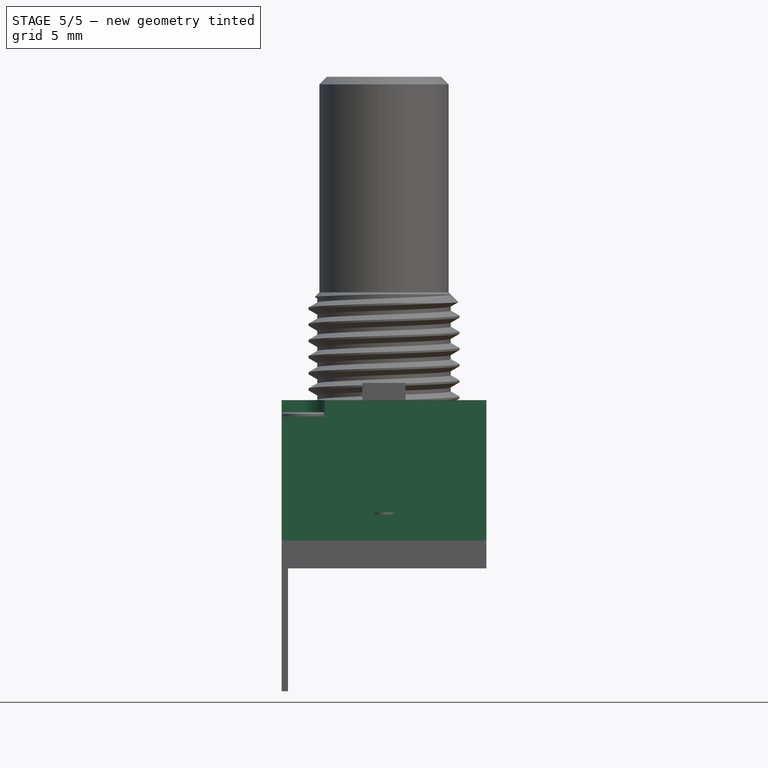
[diagram: stage 5 of 5 — front view after this stage's code; geometry added in this stage tinted green]
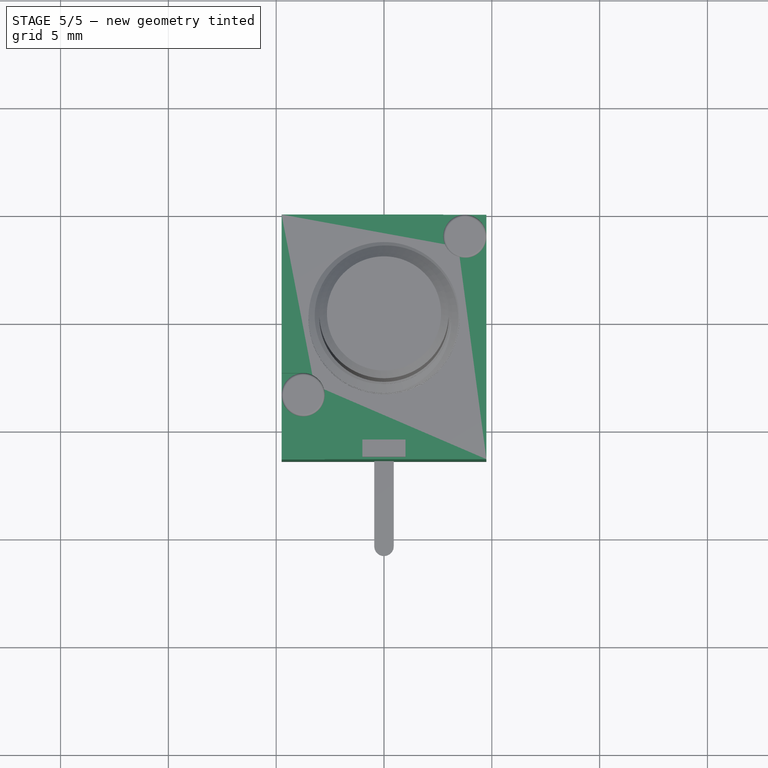
[diagram: stage 5 of 5 — top view after this stage's code; geometry added in this stage tinted green]
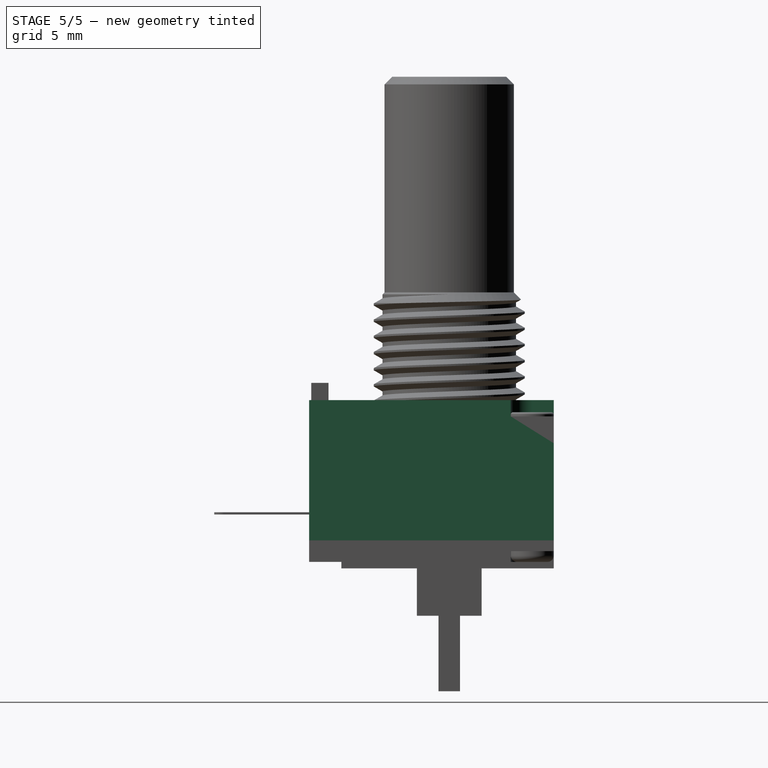
[diagram: stage 5 of 5 — right view after this stage's code; geometry added in this stage tinted green]
FEATURE [Sketcher::SketchObject] Sketch001
  AttachmentOffset = pos=(0,0,5.5) rot=(0,0,1;0rad)
  MapMode = 5
  Placement = pos=(0,0,5.5) rot=(0,0,1;0rad)
  Support = -> [XY_Plane003]
  expr: AttachmentOffset.Base.z = Data.body_z1 + Data.body_z2
  expr: Constraints[14] = Sketch.Constraints[14]
  expr: Constraints[13] = Sketch.Constraints[13]
  expr: Constraints[12] = Sketch.Constraints[12]
  sketch-geometry (5):
    g0: LineSegment StartX=-4.75 StartY=4.85 StartZ=0 EndX=4.75 EndY=4.85 EndZ=0
    g1: LineSegment StartX=4.75 StartY=4.85 StartZ=0 EndX=4.75 EndY=-6.5 EndZ=0
    g2: LineSegment StartX=4.75 StartY=-6.5 StartZ=0 EndX=-4.75 EndY=-6.5 EndZ=0
    g3: LineSegment StartX=-4.75 StartY=-6.5 StartZ=0 EndX=-4.75 EndY=4.85 EndZ=0
    g4: LineSegment [constr] StartX=-4.75 StartY=0 StartZ=0 EndX=4.75 EndY=0 EndZ=0
  constraints (15):
    c: Coincident(g0,g1)
    c: Coincident(g1,g2)
    c: Coincident(g2,g3)
    c: Coincident(g3,g0)
    c: Horizontal(g2)
    c: Vertical(g1)
    c: Vertical(g3)
    c: PointOnObject(g4,g3)
    c: PointOnObject(g4,g1)
    c: Horizontal(g4)
    c: PointOnObject(g4,g-1)
    c: Symmetric(g0,g0,g-2)
    c: DistanceY(g4,g0) = 4.85
    c: DistanceY(g1,g4) = 6.5
    c: DistanceX(g0,g0) = 9.5
FEATURE [Sketcher::SketchObject] Sketch002
  AttachmentOffset = pos=(0,0,1) rot=(0,0,1;0rad)
  MapMode = 5
  Placement = pos=(0,0,1) rot=(0,0,1;0rad)
  Support = -> [XY_Plane002]
  expr: AttachmentOffset.Base.z = Data.body_z1
  expr: Constraints[14] = Sketch.Constraints[14]
  expr: Constraints[13] = Sketch.Constraints[13]
  expr: Constraints[12] = Sketch.Constraints[12]
  sketch-geometry (5):
    g0: LineSegment StartX=-4.75 StartY=4.85 StartZ=0 EndX=4.75 EndY=4.85 EndZ=0
    g1: LineSegment StartX=4.75 StartY=4.85 StartZ=0 EndX=4.75 EndY=-6.5 EndZ=0
    g2: LineSegment StartX=4.75 StartY=-6.5 StartZ=0 EndX=-4.75 EndY=-6.5 EndZ=0
    g3: LineSegment StartX=-4.75 StartY=-6.5 StartZ=0 EndX=-4.75 EndY=4.85 EndZ=0
    g4: LineSegment [constr] StartX=-4.75 StartY=0 StartZ=0 EndX=4.75 EndY=0 EndZ=0
  constraints (15):
    c: Coincident(g0,g1)
    c: Coincident(g1,g2)
    c: Coincident(g2,g3)
    c: Coincident(g3,g0)
    c: Horizontal(g2)
    c: Vertical(g1)
    c: Vertical(g3)
    c: PointOnObject(g4,g3)
    c: PointOnObject(g4,g1)
    c: Horizontal(g4)
    c: PointOnObject(g4,g-1)
    c: Symmetric(g0,g0,g-2)
    c: DistanceY(g4,g0) = 4.85
    c: DistanceY(g1,g4) = 6.5
    c: DistanceX(g0,g0) = 9.5
FEATURE [PartDesign::Pad] Pad001
  Length = 4.5
  Length2 = 100
  Profile = -> Sketch002
  Type = 0
  expr: Length = Data.body_z2
FEATURE [PartDesign::Body] Body001  label="Housing_Middle"
  Group = -> [Sketch002,Pad001]
  Origin = -> Origin002
  Tip = -> Pad001
FEATURE [PartDesign::Pad] Pad002
  Length = 2
  Length2 = 100
  Profile = -> Sketch001
  Type = 0
  expr: Length = Data.body_z3
FEATURE [Sketcher::SketchObject] Sketch003
  AttachmentOffset = pos=(0,0,7.5) rot=(0,0,1;0rad)
  MapMode = 5
  Placement = pos=(0,0,7.5) rot=(0,0,1;0rad)
  Support = -> [XY_Plane003]
  expr: Constraints[13] = Data.body_y1
  expr: Constraints[12] = Data.body_x / 2
  expr: Constraints[11] = Data.cutout_r
  expr: Constraints[10] = Data.cutout_tr_y
  expr: Constraints[9] = Data.cutout_tr_x
  expr: AttachmentOffset.Base.z = Data.body_z1 + Data.body_z2 + Data.body_z3
  sketch-geometry (5):
    g0: LineSegment StartX=2.75 StartY=4.85 StartZ=0 EndX=4.75 EndY=4.85 EndZ=0
    g1: LineSegment StartX=4.75 StartY=4.85 StartZ=0 EndX=4.75 EndY=2.85 EndZ=0
    g2: LineSegment StartX=4.75 StartY=2.85 StartZ=0 EndX=3.75 EndY=2.85 EndZ=0
    g3: LineSegment StartX=2.75 StartY=3.85 StartZ=0 EndX=2.75 EndY=4.85 EndZ=0
    g4: ArcOfCircle CenterX=3.75 CenterY=3.85 CenterZ=0 NormalX=0 NormalY=0 NormalZ=1 AngleXU=0 Radius=1 StartAngle=3.14159 EndAngle=4.71239
  constraints (14):
    c: Coincident(g0,g1)
    c: Coincident(g1,g2)
    c: Coincident(g3,g0)
    c: Horizontal(g0)
    c: Horizontal(g2)
    c: Vertical(g1)
    c: Vertical(g3)
    c: Tangent(g2,g4) = 1.5708
    c: Tangent(g3,g4) = 1.5708
    c: DistanceX(g0,g0) = 2
    c: DistanceY(g1,g1) = 2
    c: DistanceX(g3,g4) = 1
    c: DistanceX(g-1,g0) = 4.75
    c: DistanceY(g-1,g0) = 4.85
FEATURE [PartDesign::Pocket] Pocket
  BaseFeature = -> Pad002
  Length = 0.75
  Length2 = 100
  Profile = -> Sketch003
  Type = 0
  expr: Length = Data.cutout_t_z
FEATURE [Sketcher::SketchObject] Sketch004
  AttachmentOffset = pos=(0,0,7.5) rot=(0,0,1;0rad)
  MapMode = 5
  Placement = pos=(0,0,7.5) rot=(0,0,1;0rad)
  Support = -> [XY_Plane003]
  expr: AttachmentOffset.Base.z = Data.body_z1 + Data.body_z2 + Data.body_z3
  expr: Constraints[13] = Data.body_y2
  expr: Constraints[12] = Data.body_x / 2
  expr: Constraints[11] = Data.cutout_tl_y
  expr: Constraints[10] = Data.cutout_tl_x
  expr: Constraints[9] = Data.cutout_r
  sketch-geometry (5):
    g0: LineSegment StartX=-4.75 StartY=-2.5 StartZ=0 EndX=-3.75 EndY=-2.5 EndZ=0
    g1: LineSegment StartX=-2.75 StartY=-3.5 StartZ=0 EndX=-2.75 EndY=-6.5 EndZ=0
    g2: LineSegment StartX=-2.75 StartY=-6.5 StartZ=0 EndX=-4.75 EndY=-6.5 EndZ=0
    g3: LineSegment StartX=-4.75 StartY=-6.5 StartZ=0 EndX=-4.75 EndY=-2.5 EndZ=0
    g4: ArcOfCircle CenterX=-3.75 CenterY=-3.5 CenterZ=0 NormalX=0 NormalY=0 NormalZ=1 AngleXU=0 Radius=1 StartAngle=1e-16 EndAngle=1.5708
  constraints (14):
    c: Coincident(g1,g2)
    c: Coincident(g2,g3)
    c: Coincident(g3,g0)
    c: Horizontal(g0)
    c: Horizontal(g2)
    c: Vertical(g1)
    c: Vertical(g3)
    c: Tangent(g0,g4) = 1.5708
    c: Tangent(g1,g4) = 1.5708
    c: DistanceX(g4,g1) = 1
    c: DistanceX(g0,g1) = 2
    c: DistanceY(g2,g0) = 4
    c: DistanceX(g2,g-1) = 4.75
    c: DistanceY(g2,g-1) = 6.5
FEATURE [PartDesign::Pocket] Pocket001
  BaseFeature = -> Pocket
  Length = 0.75
  Length2 = 100
  Profile = -> Sketch004
  Type = 0
  expr: Length = Data.cutout_t_z
FEATURE [Sketcher::SketchObject] Sketch006
  MapMode = 5
  Support = -> [XY_Plane001]
  expr: Constraints[15] = Data.cutout_r
  expr: Constraints[16] = Data.body_x / 2
  expr: Constraints[17] = Data.body_y2 - Data.cutout_tl_y
  expr: Constraints[14] = Data.cutout_bl_x
  sketch-geometry (6):
    g0: LineSegment StartX=-4.75 StartY=-2.5 StartZ=0 EndX=-4.75 EndY=-4.5 EndZ=0
    g1: LineSegment StartX=-4.75 StartY=-2.5 StartZ=0 EndX=-3.75 EndY=-2.5 EndZ=0
    g2: LineSegment StartX=-4.75 StartY=-4.5 StartZ=0 EndX=-3.75 EndY=-4.5 EndZ=0
    g3: LineSegment [constr] StartX=-3.75 StartY=-2.5 StartZ=0 EndX=-3.75 EndY=-4.5 EndZ=0
    g4: ArcOfCircle CenterX=-3.75 CenterY=-3.5 CenterZ=0 NormalX=0 NormalY=0 NormalZ=1 AngleXU=0 Radius=1 StartAngle=4.71239 EndAngle=7.85398
    g5: LineSegment [constr] StartX=-3.75 StartY=-3.5 StartZ=0 EndX=-2.75 EndY=-3.5 EndZ=0
  constraints (18):
    c: Vertical(g0)
    c: Coincident(g1,g0)
    c: Horizontal(g1)
    c: Coincident(g2,g0)
    c: Horizontal(g2)
    c: Equal(g2,g1)
    c: Coincident(g3,g1)
    c: Coincident(g3,g2)
    c: PointOnObject(g4,g3)
    c: Coincident(g4,g1)
    c: Coincident(g4,g2)
    c: Coincident(g5,g4)
    c: PointOnObject(g5,g4)
    c: Horizontal(g5)
    c: DistanceX(g0,g5) = 2
    c: DistanceX(g4,g5) = 1
    c: DistanceX(g0,g-1) = 4.75
    c: DistanceY(g0,g-1) = 2.5
FEATURE [PartDesign::Pocket] Pocket003
  BaseFeature = -> Pocket002
  Length = 0.5
  Length2 = 100
  Profile = -> Sketch006
  Reversed = true
  Type = 0
  expr: Length = Data.cutout_b_z
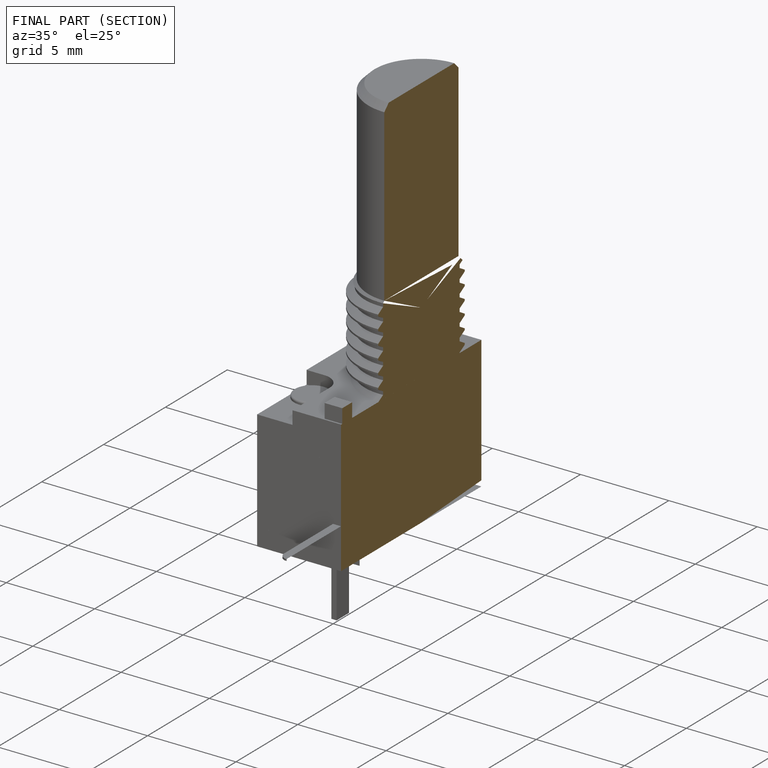
[diagram: finished part — half-section view (interior)]
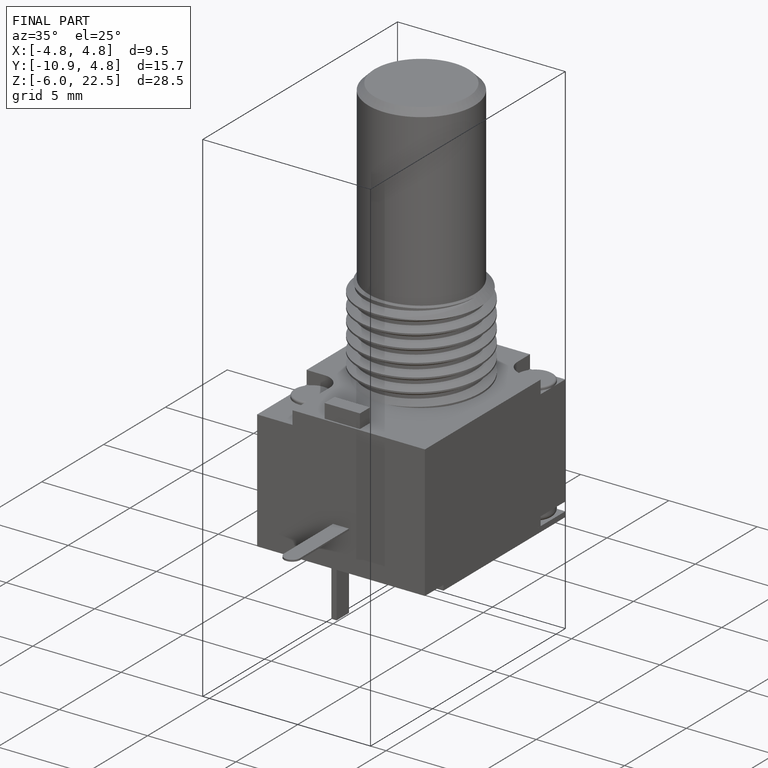
[diagram: finished part — iso view with bounding-box wireframe]
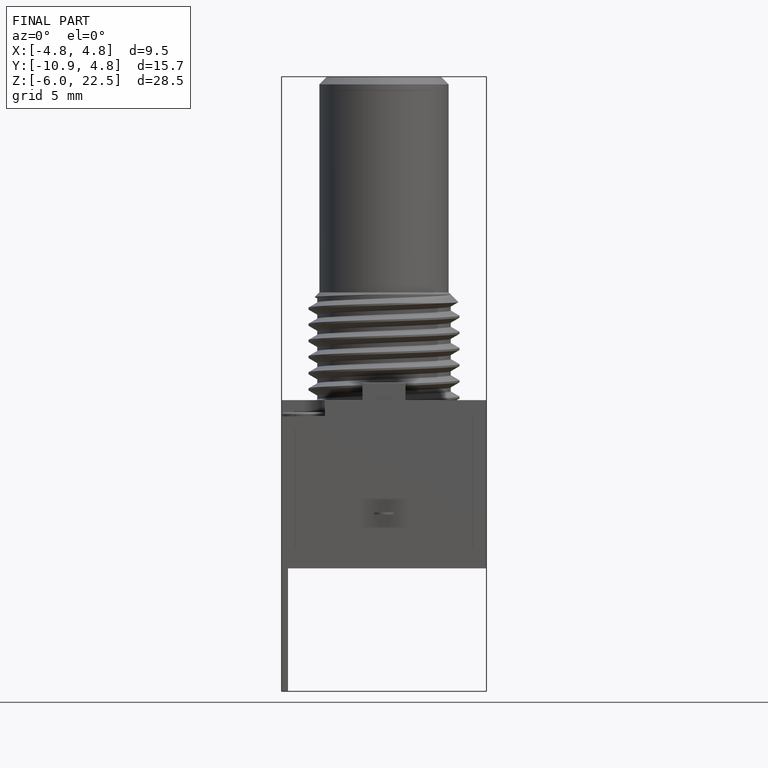
[diagram: finished part — front view with bounding-box wireframe]
